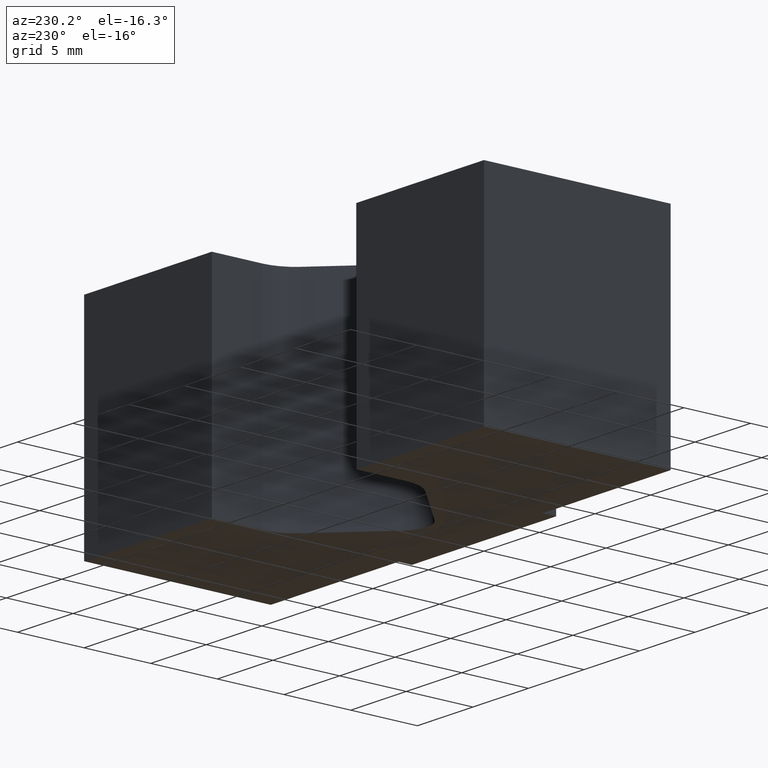
[diagram: clean part render]
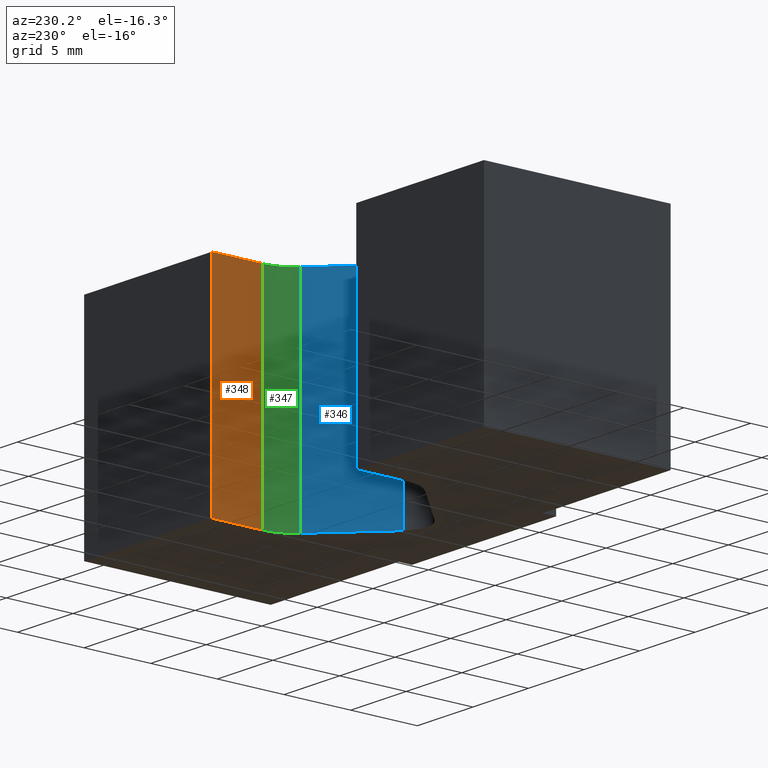
[diagram: same view with three faces highlighted in distinct colors, each labeled with its STEP entity id]
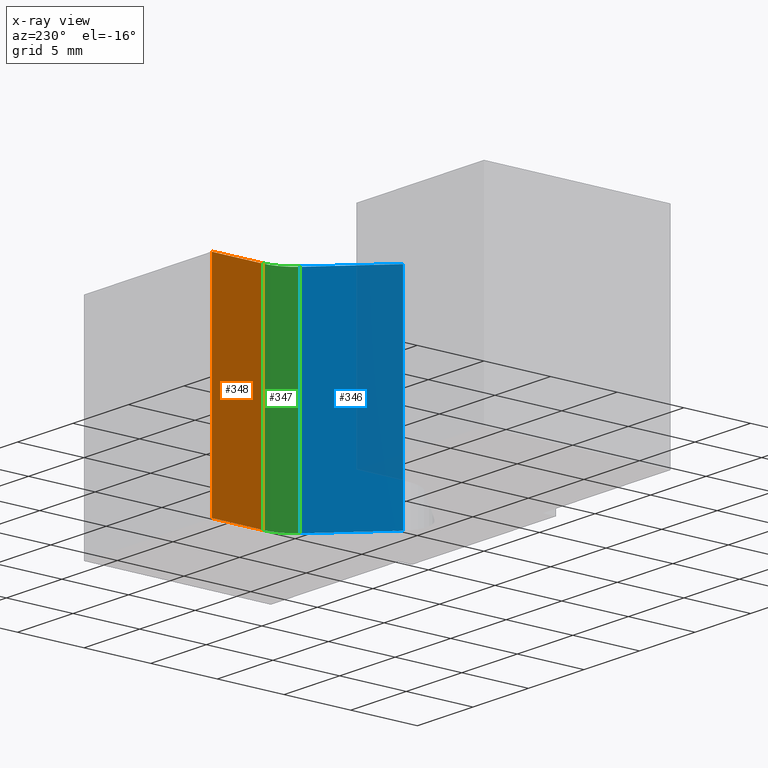
[diagram: x-ray of the same camera — body ghosted, the three highlighted faces saturated]
A machine part, auxiliary view with three faces highlighted in distinct colors.
The next image is the same camera in x-ray (body ghosted, the three faces saturated) — at least one of them is partly hidden behind the body in this view.
Their STEP definitions:

[orange] entity #348 — the highlighted planar face has unit normal (-1, 0, 0).
#31=FACE_OUTER_BOUND('',#49,.T.);
#49=EDGE_LOOP('',(#288,#289,#290,#291));
#71=LINE('',#524,#113);
#94=LINE('',#575,#136);
#95=LINE('',#578,#137);
#96=LINE('',#579,#138);
#113=VECTOR('',#421,10.);
#136=VECTOR('',#474,10.);
#137=VECTOR('',#477,10.);
#138=VECTOR('',#478,10.);
#158=VERTEX_POINT('',#521);
#159=VERTEX_POINT('',#523);
#172=VERTEX_POINT('',#573);
#173=VERTEX_POINT('',#577);
#190=EDGE_CURVE('',#159,#158,#71,.T.);
#216=EDGE_CURVE('',#172,#158,#94,.T.);
#217=EDGE_CURVE('',#172,#173,#95,.T.);
#218=EDGE_CURVE('',#173,#159,#96,.T.);
#288=ORIENTED_EDGE('',*,*,#217,.T.);
#289=ORIENTED_EDGE('',*,*,#218,.T.);
#290=ORIENTED_EDGE('',*,*,#190,.T.);
#291=ORIENTED_EDGE('',*,*,#216,.F.);
#330=PLANE('',#395);
#348=ADVANCED_FACE('',(#31),#330,.T.);
#395=AXIS2_PLACEMENT_3D('',#576,#475,#476);
#421=DIRECTION('',(-2.9326087007726E-16,-1.,0.));
#474=DIRECTION('',(0.,0.,-1.));
#475=DIRECTION('center_axis',(-1.,2.9326087007726E-16,0.));
#476=DIRECTION('ref_axis',(0.,0.,1.));
#477=DIRECTION('',(2.9326087007726E-16,1.,0.));
#478=DIRECTION('',(0.,0.,-1.));
#521=CARTESIAN_POINT('',(6.5,11.2142135623731,-8.));
#523=CARTESIAN_POINT('',(6.5,15.,-8.));
#524=CARTESIAN_POINT('',(6.5,11.2142135623731,-8.));
#573=CARTESIAN_POINT('',(6.5,11.2142135623731,8.));
#575=CARTESIAN_POINT('',(6.5,11.2142135623731,0.));
#576=CARTESIAN_POINT('Origin',(6.5,11.2142135623731,0.));
#577=CARTESIAN_POINT('',(6.5,15.,8.));
#578=CARTESIAN_POINT('',(6.5,11.2142135623731,8.));
#579=CARTESIAN_POINT('',(6.5,15.,0.));

[blue] entity #346 — the highlighted planar face has unit normal (-0.7071, 0.7071, 0).
#29=FACE_OUTER_BOUND('',#47,.T.);
#47=EDGE_LOOP('',(#280,#281,#282,#283));
#70=LINE('',#520,#112);
#91=LINE('',#567,#133);
#92=LINE('',#570,#134);
#93=LINE('',#571,#135);
#112=VECTOR('',#418,10.);
#133=VECTOR('',#465,10.);
#134=VECTOR('',#468,10.);
#135=VECTOR('',#469,10.);
#156=VERTEX_POINT('',#517);
#157=VERTEX_POINT('',#519);
#170=VERTEX_POINT('',#565);
#171=VERTEX_POINT('',#569);
#188=EDGE_CURVE('',#157,#156,#70,.T.);
#212=EDGE_CURVE('',#170,#156,#91,.T.);
#213=EDGE_CURVE('',#170,#171,#92,.T.);
#214=EDGE_CURVE('',#171,#157,#93,.T.);
#280=ORIENTED_EDGE('',*,*,#213,.T.);
#281=ORIENTED_EDGE('',*,*,#214,.T.);
#282=ORIENTED_EDGE('',*,*,#188,.T.);
#283=ORIENTED_EDGE('',*,*,#212,.F.);
#329=PLANE('',#392);
#346=ADVANCED_FACE('',(#29),#329,.T.);
#392=AXIS2_PLACEMENT_3D('',#568,#466,#467);
#418=DIRECTION('',(-0.707106781186547,-0.707106781186548,0.));
#465=DIRECTION('',(0.,0.,-1.));
#466=DIRECTION('center_axis',(-0.707106781186548,0.707106781186547,0.));
#467=DIRECTION('ref_axis',(0.,0.,1.));
#468=DIRECTION('',(0.707106781186547,0.707106781186548,0.));
#469=DIRECTION('',(0.,0.,-1.));
#517=CARTESIAN_POINT('',(1.4142135623731,4.8857864376269,-8.));
#519=CARTESIAN_POINT('',(5.62132034355964,9.09289321881345,-8.));
#520=CARTESIAN_POINT('',(1.4142135623731,4.8857864376269,-8.));
#565=CARTESIAN_POINT('',(1.4142135623731,4.8857864376269,8.));
#567=CARTESIAN_POINT('',(1.4142135623731,4.8857864376269,0.));
#568=CARTESIAN_POINT('Origin',(1.4142135623731,4.8857864376269,0.));
#569=CARTESIAN_POINT('',(5.62132034355964,9.09289321881345,8.));
#570=CARTESIAN_POINT('',(1.4142135623731,4.8857864376269,8.));
#571=CARTESIAN_POINT('',(5.62132034355964,9.09289321881345,0.));

[green] entity #347 — the highlighted cylindrical surface (partial cylindrical patch) has radius 3 mm, axis along (0, 0, 1).
#17=CYLINDRICAL_SURFACE('',#393,3.);
#30=FACE_OUTER_BOUND('',#48,.T.);
#48=EDGE_LOOP('',(#284,#285,#286,#287));
#56=CIRCLE('',#379,3.);
#59=CIRCLE('',#394,3.);
#93=LINE('',#571,#135);
#94=LINE('',#575,#136);
#135=VECTOR('',#469,10.);
#136=VECTOR('',#474,10.);
#157=VERTEX_POINT('',#519);
#158=VERTEX_POINT('',#521);
#171=VERTEX_POINT('',#569);
#172=VERTEX_POINT('',#573);
#189=EDGE_CURVE('',#158,#157,#56,.T.);
#214=EDGE_CURVE('',#171,#157,#93,.T.);
#215=EDGE_CURVE('',#171,#172,#59,.T.);
#216=EDGE_CURVE('',#172,#158,#94,.T.);
#284=ORIENTED_EDGE('',*,*,#215,.T.);
#285=ORIENTED_EDGE('',*,*,#216,.T.);
#286=ORIENTED_EDGE('',*,*,#189,.T.);
#287=ORIENTED_EDGE('',*,*,#214,.F.);
#347=ADVANCED_FACE('',(#30),#17,.F.);
#379=AXIS2_PLACEMENT_3D('',#522,#419,#420);
#393=AXIS2_PLACEMENT_3D('',#572,#470,#471);
#394=AXIS2_PLACEMENT_3D('',#574,#472,#473);
#419=DIRECTION('center_axis',(0.,0.,-1.));
#420=DIRECTION('ref_axis',(0.707106781186548,-0.707106781186548,0.));
#469=DIRECTION('',(0.,0.,-1.));
#470=DIRECTION('center_axis',(0.,0.,1.));
#471=DIRECTION('ref_axis',(0.707106781186548,-0.707106781186548,0.));
#472=DIRECTION('center_axis',(0.,0.,1.));
#473=DIRECTION('ref_axis',(0.707106781186548,-0.707106781186548,0.));
#474=DIRECTION('',(0.,0.,-1.));
#519=CARTESIAN_POINT('',(5.62132034355964,9.09289321881345,-8.));
#521=CARTESIAN_POINT('',(6.5,11.2142135623731,-8.));
#522=CARTESIAN_POINT('Origin',(3.5,11.2142135623731,-8.));
#569=CARTESIAN_POINT('',(5.62132034355964,9.09289321881345,8.));
#571=CARTESIAN_POINT('',(5.62132034355964,9.09289321881345,0.));
#572=CARTESIAN_POINT('Origin',(3.5,11.2142135623731,0.));
#573=CARTESIAN_POINT('',(6.5,11.2142135623731,8.));
#574=CARTESIAN_POINT('Origin',(3.5,11.2142135623731,8.));
#575=CARTESIAN_POINT('',(6.5,11.2142135623731,0.));